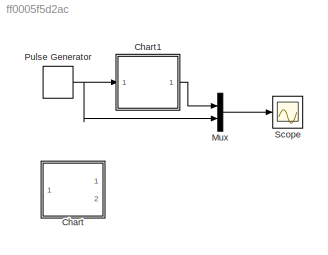
MODEL slx_ff0005f5d2ac
KIND model
CONFIG AbsTol = auto
CONFIG EnableMultiTasking = off
CONFIG FixedStep = auto
CONFIG MaxStep = auto
CONFIG MinStep = auto
CONFIG RelTol = 1e-3
CONFIG SampleTimeConstraint = Unconstrained
CONFIG SolverName = FixedStepAuto
CONFIG StartTime = 0.0
CONFIG StopTime = 15.0
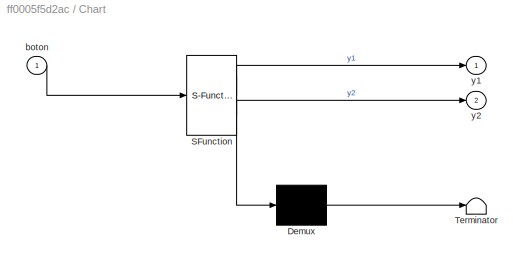
BLOCK [SubSystem] Chart
  Commented = on
  ErrorFcn = Stateflow.Translate.translate
  PermitHierarchicalResolution = ExplicitOnly
  Ports = [1, 2]
  RequestExecContextInheritance = off
  SFBlockType = Chart
  TreatAsAtomicUnit = on
BLOCK [Demux] Chart/ Demux 
  Outputs = 1
  Ports = [1, 1]
BLOCK [S-Function] Chart/ SFunction 
  EnableBusSupport = on
  FunctionName = sf_sfun
  PortCounts = [1 3]
  Ports = [1, 3]
  SFcnIsStateOwnerBlock = off
  SFunctionDeploymentMode = off
  Tag = Stateflow S-Function 3
BLOCK [Terminator] Chart/ Terminator 
BLOCK [Inport] Chart/boton
BLOCK [Outport] Chart/y1
BLOCK [Outport] Chart/y2
  Port = 2
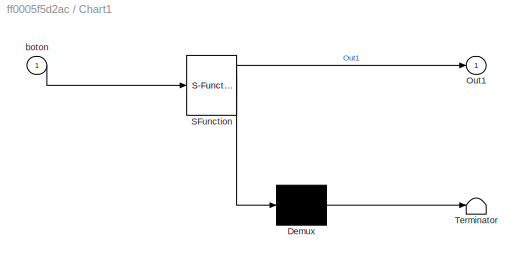
BLOCK [SubSystem] Chart1
  ErrorFcn = Stateflow.Translate.translate
  PermitHierarchicalResolution = ExplicitOnly
  Ports = [1, 1]
  RequestExecContextInheritance = off
  SFBlockType = Chart
  TreatAsAtomicUnit = on
BLOCK [Demux] Chart1/ Demux 
  Outputs = 1
  Ports = [1, 1]
BLOCK [S-Function] Chart1/ SFunction 
  EnableBusSupport = on
  FunctionName = sf_sfun
  PortCounts = [1 2]
  Ports = [1, 2]
  SFcnIsStateOwnerBlock = off
  SFunctionDeploymentMode = off
  Tag = Stateflow S-Function 1
BLOCK [Terminator] Chart1/ Terminator 
BLOCK [Outport] Chart1/Out1
BLOCK [Inport] Chart1/boton
BLOCK [Mux] Mux
  DisplayOption = bar
  Inputs = 2
  Ports = [2, 1]
BLOCK [DiscretePulseGenerator] Pulse Generator
  Period = 10
  PhaseDelay = 1
  Ports = [0, 1]
  PulseType = Time based
  PulseWidth = 5
BLOCK [Scope] Scope
  Floating = off
  NumInputPorts = 1
  Ports = [1]
  ScopeSpecificationString = Simulink.scopes.TimeScopeBlockCfg('CurrentConfiguration', extmgr.ConfigurationSet(extmgr.Configuration('Core','General UI',true),extmgr.Configuration('Core','Source UI',true),extmgr.Configuration('Sources','WiredSimulink',true),extmgr.Configuration('Visuals','Time Domain',true,'SerializedDisplays',{struct('MinYLimReal','-0.125','MaxYLimReal','1.125','YLabelReal','','MinYLimMag','0.00000','MaxYLimM...<+1619ch>
LINE Chart1:1 -> Mux:1
LINE Mux:1 -> Scope:1
NET Pulse Generator:1 -> Chart1:1, Mux:2
note: NET lines group one-source signal fan-out (src -> all destinations, sorted); 1:1 wires keep LINE
CHART Chart1 states=2 transitions=2
  STATE_LABEL 'Off\nOut1=0'
  STATE_LABEL 'On\nOut1=1\n'
CHART Chart states=7 transitions=8
  STATE_LABEL 'Vehiculos'
  STATE_LABEL 'Rojo\ny1 = 0'
  STATE_LABEL 'Ambar\ny1 = 2'
  STATE_LABEL 'Verde\ny1 = 1'
  STATE_LABEL 'after(10,sec) {send(cambiaARV, Peatonal)}'
  STATE_LABEL 'after(20,sec){send(cambiaRVV,Peatonal)}'
  STATE_LABEL '[boton == 1]'
  STATE_LABEL 'after(30,sec)'
  STATE_LABEL 'Rojo\ny1 = 0'
  STATE_LABEL 'Ambar\ny1 = 2'
  STATE_LABEL 'Verde\ny1 = 1'
  STATE_LABEL 'Peatonal'
  STATE_LABEL 'Rojo\ny2 = 3'
  STATE_LABEL 'Verde\ny2 = 4'
  STATE_LABEL 'cambiaRVV'
  STATE_LABEL 'cambiaARV'
  STATE_LABEL 'Rojo\ny2 = 3'
  STATE_LABEL 'Verde\ny2 = 4'
CHART  states=0 transitions=0
CHART  states=0 transitions=0
